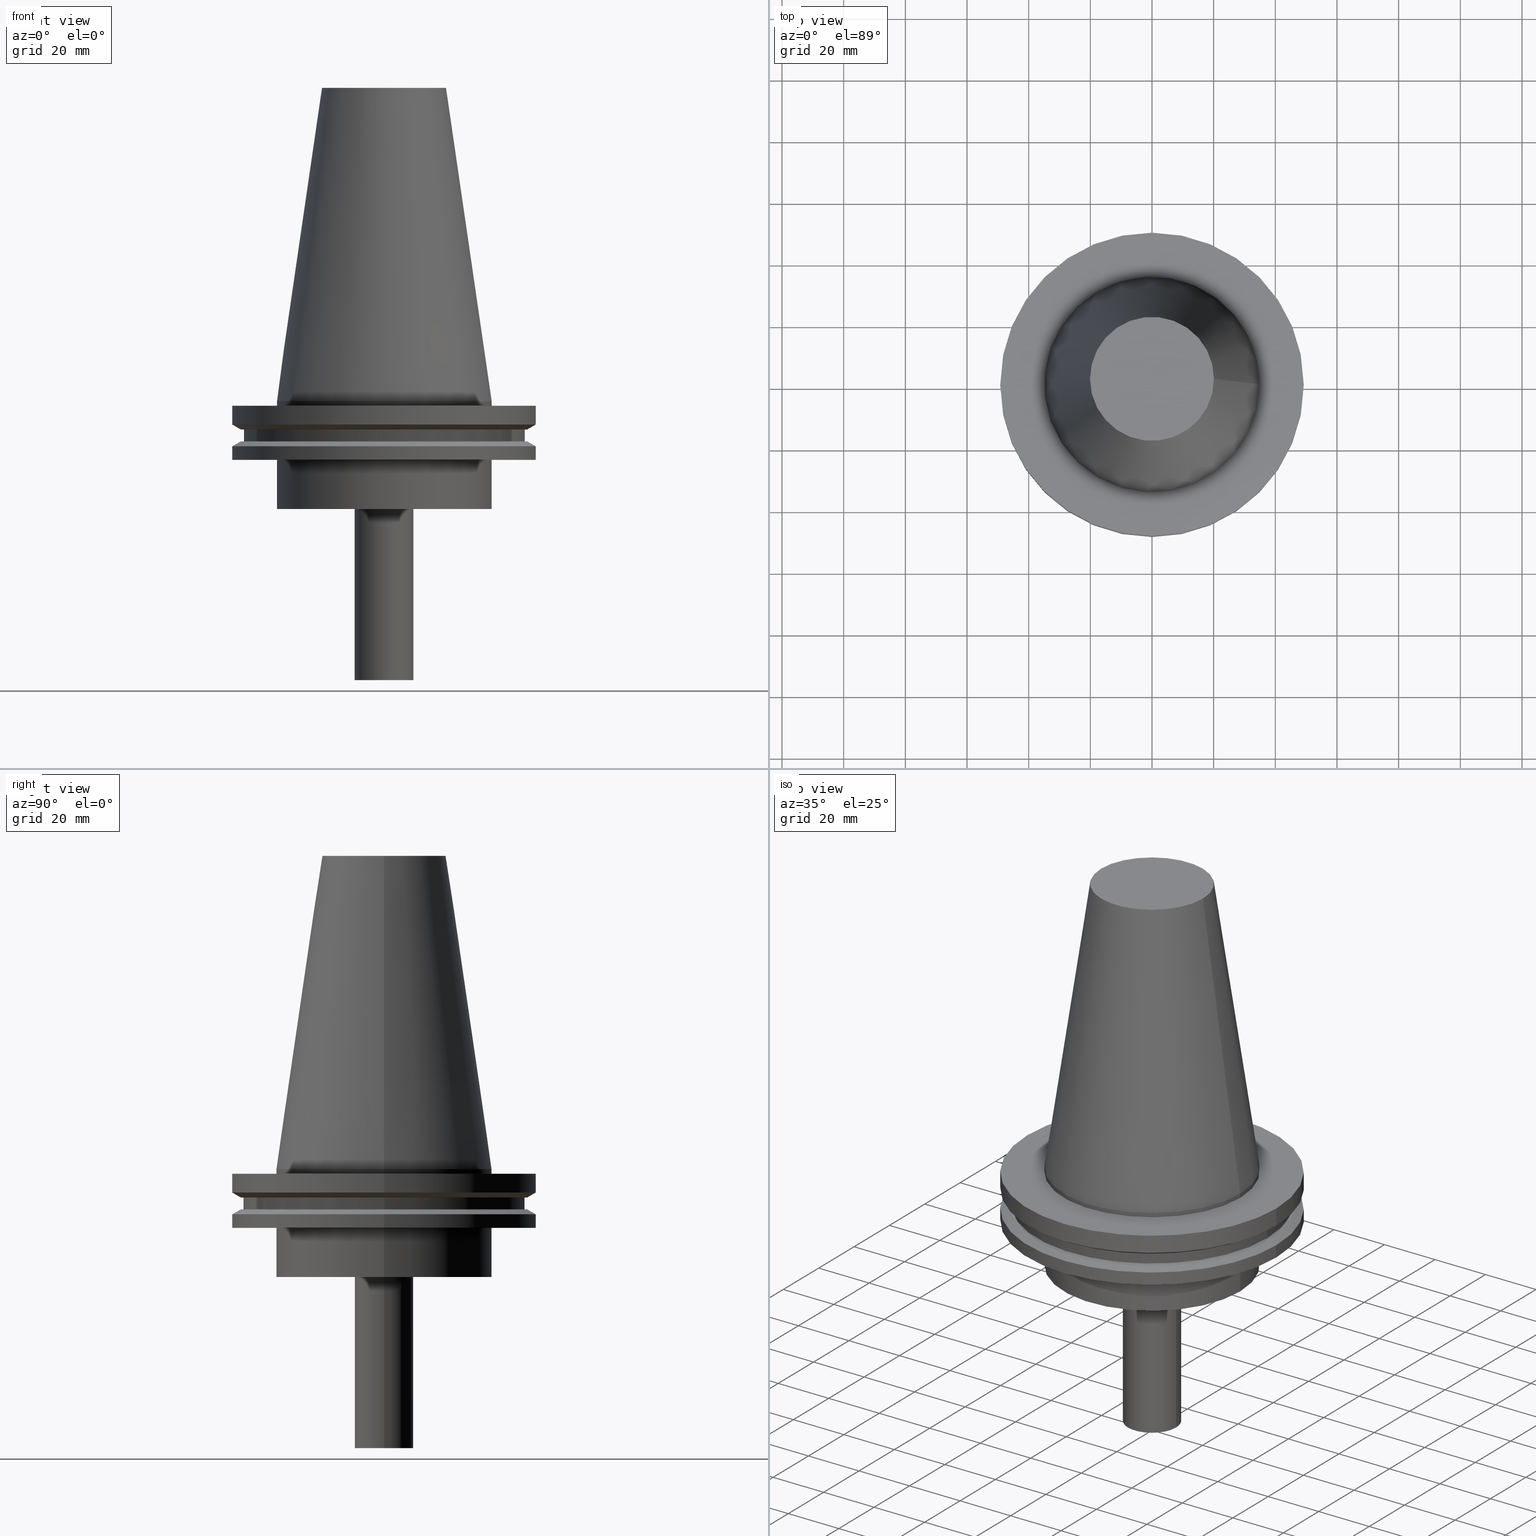
[diagram: canonical four-view strip — front | top / right | iso, engineering-drawing reading convention]
A machine part, canonical four-view strip (front | top / right | iso — engineering-drawing reading convention). The complete STEP part file that produces these views, byte-faithful:
ISO-10303-21;
HEADER;
FILE_DESCRIPTION (( 'STEP AP203' ),
    '1' );
FILE_NAME ('11.326.611.stp',
    '2022-03-09T14:49:17',
    ( '' ),
    ( '' ),
    'SwSTEP 2.0',
    'SolidWorks 2021',
    '' );
FILE_SCHEMA (( 'CONFIG_CONTROL_DESIGN' ));
ENDSEC;

DATA;
#1 = AXIS2_PLACEMENT_3D ( 'NONE', #110, #330, #234 ) ;
#2 = DATE_AND_TIME ( #279, #23 ) ;
#3 = EDGE_LOOP ( 'NONE', ( #117 ) ) ;
#4 = CARTESIAN_POINT ( 'NONE',  ( 49.21500000000000341, 0.000000000000000000, -7.602389855251287187 ) ) ;
#5 = EDGE_LOOP ( 'NONE', ( #115 ) ) ;
#6 = COORDINATED_UNIVERSAL_TIME_OFFSET ( 6, 0, .BEHIND. ) ;
#7 = CARTESIAN_POINT ( 'NONE',  ( 0.000000000000000000, 49.21499999999998920, -19.04999999999999716 ) ) ;
#8 = CIRCLE ( 'NONE', #37, 9.525000000000000355 ) ;
#9 = AXIS2_PLACEMENT_3D ( 'NONE', #236, #141, #204 ) ;
#10 = APPROVAL_ROLE ( '' ) ;
#11 = PLANE ( 'NONE',  #284 ) ;
#12 = PRODUCT_DEFINITION ( 'UNKNOWN', '', #154, #328 ) ;
#13 = DIRECTION ( 'NONE',  ( 1.000000000000000000, 0.000000000000000000, 0.000000000000000000 ) ) ;
#14 = CALENDAR_DATE ( 2022, 9, 3 ) ;
#15 = CARTESIAN_POINT ( 'NONE',  ( 0.000000000000000000, 0.000000000000000000, -35.00000000000000000 ) ) ;
#16 = COORDINATED_UNIVERSAL_TIME_OFFSET ( 6, 0, .BEHIND. ) ;
#17 = PLANE ( 'NONE',  #336 ) ;
#18 = CARTESIAN_POINT ( 'NONE',  ( 0.000000000000000000, 0.000000000000000000, 0.000000000000000000 ) ) ;
#19 = APPLICATION_CONTEXT ( 'configuration controlled 3d designs of mechanical parts and assemblies' ) ;
#20 = CYLINDRICAL_SURFACE ( 'NONE', #9, 49.21499999999998920 ) ;
#21 = EDGE_CURVE ( 'NONE', #136, #136, #39, .T. ) ;
#22 = DIRECTION ( 'NONE',  ( 1.000000000000000000, 0.000000000000000000, 0.000000000000000000 ) ) ;
#23 = LOCAL_TIME ( 8, 49, 17.00000000000000000, #156 ) ;
#24 = CARTESIAN_POINT ( 'NONE',  ( 0.000000000000000000, 0.000000000000000000, -13.05499999999999794 ) ) ;
#25 = EDGE_LOOP ( 'NONE', ( #126 ) ) ;
#26 = CARTESIAN_POINT ( 'NONE',  ( 0.000000000000000000, 49.21499999999999631, -1.499999999999992895 ) ) ;
#27 = EDGE_CURVE ( 'NONE', #109, #109, #356, .T. ) ;
#28 = PERSON_AND_ORGANIZATION_ROLE ( 'creator' ) ;
#29 = AXIS2_PLACEMENT_3D ( 'NONE', #24, #389, #361 ) ;
#30 = APPROVAL ( #225, 'UNSPECIFIED' ) ;
#31 = ORIENTED_EDGE ( 'NONE', *, *, #233, .T. ) ;
#32 = CARTESIAN_POINT ( 'NONE',  ( 9.525000000000000355, 0.000000000000000000, -90.50000000000001421 ) ) ;
#33 = ORIENTED_EDGE ( 'NONE', *, *, #309, .T. ) ;
#34 = PERSON_AND_ORGANIZATION ( #162, #375 ) ;
#35 = DIRECTION ( 'NONE',  ( -0.000000000000000000, -0.000000000000000000, 1.000000000000000000 ) ) ;
#36 = EDGE_LOOP ( 'NONE', ( #237 ) ) ;
#37 = AXIS2_PLACEMENT_3D ( 'NONE', #376, #354, #348 ) ;
#38 = DIRECTION ( 'NONE',  ( 1.000000000000000000, 0.000000000000000000, 0.000000000000000000 ) ) ;
#39 = CIRCLE ( 'NONE', #297, 34.92499999999999005 ) ;
#40 = CONICAL_SURFACE ( 'NONE', #194, 34.92499999999999005, 0.1448138465474119452 ) ;
#41 = PERSON_AND_ORGANIZATION ( #162, #375 ) ;
#42 = CYLINDRICAL_SURFACE ( 'NONE', #305, 34.92499999999999005 ) ;
#43 = CARTESIAN_POINT ( 'NONE',  ( 0.000000000000000000, 0.000000000000000000, -1.499999999999987566 ) ) ;
#44 = ADVANCED_FACE ( 'NONE', ( #365, #87 ), #118, .T. ) ;
#45 = FACE_OUTER_BOUND ( 'NONE', #246, .T. ) ;
#46 = CARTESIAN_POINT ( 'NONE',  ( 0.000000000000000000, 45.64500000000000313, -13.05499999999999794 ) ) ;
#47 = CARTESIAN_POINT ( 'NONE',  ( 0.000000000000000000, 0.000000000000000000, 0.000000000000000000 ) ) ;
#48 = EDGE_CURVE ( 'NONE', #125, #125, #8, .T. ) ;
#49 = PLANE ( 'NONE',  #139 ) ;
#50 = DIRECTION ( 'NONE',  ( 1.000000000000000000, 0.000000000000000000, 0.000000000000000000 ) ) ;
#51 =( GEOMETRIC_REPRESENTATION_CONTEXT ( 3 ) GLOBAL_UNCERTAINTY_ASSIGNED_CONTEXT ( ( #295 ) ) GLOBAL_UNIT_ASSIGNED_CONTEXT ( ( #240, #64, #116 ) ) REPRESENTATION_CONTEXT ( 'NONE', 'WORKASPACE' ) );
#52 = ORIENTED_EDGE ( 'NONE', *, *, #170, .T. ) ;
#53 = DIRECTION ( 'NONE',  ( -0.000000000000000000, -0.000000000000000000, 1.000000000000000000 ) ) ;
#54 = FACE_BOUND ( 'NONE', #157, .T. ) ;
#55 = APPROVAL ( #57, 'UNSPECIFIED' ) ;
#56 = AXIS2_PLACEMENT_3D ( 'NONE', #258, #380, #38 ) ;
#57 = APPROVAL_STATUS ( 'not_yet_approved' ) ;
#58 = ORIENTED_EDGE ( 'NONE', *, *, #48, .F. ) ;
#59 = AXIS2_PLACEMENT_3D ( 'NONE', #47, #81, #294 ) ;
#60 = VERTEX_POINT ( 'NONE', #4 ) ;
#61 = EDGE_LOOP ( 'NONE', ( #93 ) ) ;
#62 = DIRECTION ( 'NONE',  ( 0.000000000000000000, 0.000000000000000000, 1.000000000000000000 ) ) ;
#63 = ORIENTED_EDGE ( 'NONE', *, *, #48, .T. ) ;
#64 =( NAMED_UNIT ( * ) PLANE_ANGLE_UNIT ( ) SI_UNIT ( $, .RADIAN. ) );
#65 = EDGE_LOOP ( 'NONE', ( #244 ) ) ;
#66 = ORIENTED_EDGE ( 'NONE', *, *, #364, .T. ) ;
#67 = SECURITY_CLASSIFICATION_LEVEL ( 'unclassified' ) ;
#68 = FACE_OUTER_BOUND ( 'NONE', #84, .T. ) ;
#69 = CC_DESIGN_PERSON_AND_ORGANIZATION_ASSIGNMENT ( #127, #350, ( #154 ) ) ;
#70 = APPROVAL_ROLE ( '' ) ;
#71 = FACE_OUTER_BOUND ( 'NONE', #25, .T. ) ;
#72 = CIRCLE ( 'NONE', #79, 45.64500000000000313 ) ;
#73 = DIRECTION ( 'NONE',  ( 0.000000000000000000, -0.000000000000000000, 1.000000000000000000 ) ) ;
#74 = EDGE_CURVE ( 'NONE', #114, #114, #285, .T. ) ;
#75 = COORDINATED_UNIVERSAL_TIME_OFFSET ( 6, 0, .BEHIND. ) ;
#76 = DIRECTION ( 'NONE',  ( 0.000000000000000000, 0.000000000000000000, -1.000000000000000000 ) ) ;
#77 = FACE_OUTER_BOUND ( 'NONE', #36, .T. ) ;
#78 = AXIS2_PLACEMENT_3D ( 'NONE', #226, #257, #352 ) ;
#79 = AXIS2_PLACEMENT_3D ( 'NONE', #83, #53, #176 ) ;
#80 = CARTESIAN_POINT ( 'NONE',  ( 0.000000000000000000, 0.000000000000000000, -14.65761014474876944 ) ) ;
#81 = DIRECTION ( 'NONE',  ( -0.000000000000000000, -0.000000000000000000, 1.000000000000000000 ) ) ;
#82 = DIRECTION ( 'NONE',  ( -1.000000000000000000, 0.000000000000000000, -0.000000000000000000 ) ) ;
#83 = CARTESIAN_POINT ( 'NONE',  ( 0.000000000000000000, 0.000000000000000000, -13.05499999999999794 ) ) ;
#84 = EDGE_LOOP ( 'NONE', ( #52 ) ) ;
#85 = DIRECTION ( 'NONE',  ( -0.000000000000000000, -0.000000000000000000, 1.000000000000000000 ) ) ;
#86 = CARTESIAN_POINT ( 'NONE',  ( 20.10819343178871321, 0.000000000000000000, 101.5999999999999801 ) ) ;
#87 = FACE_BOUND ( 'NONE', #215, .T. ) ;
#88 = MECHANICAL_CONTEXT ( 'NONE', #19, 'mechanical' ) ;
#89 = ORIENTED_EDGE ( 'NONE', *, *, #271, .T. ) ;
#90 = ADVANCED_FACE ( 'NONE', ( #71, #219 ), #130, .F. ) ;
#91 = EDGE_LOOP ( 'NONE', ( #342 ) ) ;
#92 = CARTESIAN_POINT ( 'NONE',  ( 46.43919780457007818, 0.000000000000000000, -9.204999999999991189 ) ) ;
#93 = ORIENTED_EDGE ( 'NONE', *, *, #164, .F. ) ;
#94 = ADVANCED_FACE ( 'NONE', ( #133, #319 ), #168, .F. ) ;
#95 = DIRECTION ( 'NONE',  ( 1.000000000000000000, 0.000000000000000000, 0.000000000000000000 ) ) ;
#96 = CARTESIAN_POINT ( 'NONE',  ( 0.000000000000000000, 0.000000000000000000, 101.5999999999999943 ) ) ;
#97 = DATE_AND_TIME ( #377, #333 ) ;
#98 = DIRECTION ( 'NONE',  ( 1.000000000000000000, 0.000000000000000000, 0.000000000000000000 ) ) ;
#99 = CALENDAR_DATE ( 2022, 9, 3 ) ;
#100 = DIRECTION ( 'NONE',  ( -0.000000000000000000, -0.000000000000000000, 1.000000000000000000 ) ) ;
#101 = CARTESIAN_POINT ( 'NONE',  ( 0.000000000000000000, 20.10819343178871321, 101.5999999999999943 ) ) ;
#102 = FACE_OUTER_BOUND ( 'NONE', #189, .T. ) ;
#103 = ADVANCED_FACE ( 'NONE', ( #229 ), #259, .F. ) ;
#104 = CIRCLE ( 'NONE', #177, 34.92499999999999005 ) ;
#105 = DIRECTION ( 'NONE',  ( 0.000000000000000000, 0.000000000000000000, -1.000000000000000000 ) ) ;
#106 = AXIS2_PLACEMENT_3D ( 'NONE', #378, #73, #98 ) ;
#107 = CYLINDRICAL_SURFACE ( 'NONE', #253, 49.21499999999999631 ) ;
#108 = APPLICATION_CONTEXT ( 'configuration controlled 3d designs of mechanical parts and assemblies' ) ;
#109 = VERTEX_POINT ( 'NONE', #146 ) ;
#110 = CARTESIAN_POINT ( 'NONE',  ( 0.000000000000000000, 0.000000000000000000, 101.5999999999999943 ) ) ;
#111 = EDGE_CURVE ( 'NONE', #373, #373, #206, .T. ) ;
#112 = DIRECTION ( 'NONE',  ( -1.000000000000000000, 0.000000000000000000, 0.000000000000000000 ) ) ;
#113 = CC_DESIGN_APPROVAL ( #30, ( #300 ) ) ;
#114 = VERTEX_POINT ( 'NONE', #273 ) ;
#115 = ORIENTED_EDGE ( 'NONE', *, *, #74, .F. ) ;
#116 =( NAMED_UNIT ( * ) SI_UNIT ( $, .STERADIAN. ) SOLID_ANGLE_UNIT ( ) );
#117 = ORIENTED_EDGE ( 'NONE', *, *, #111, .F. ) ;
#118 = CONICAL_SURFACE ( 'NONE', #384, 46.43919780457007818, 1.047197551196575205 ) ;
#119 = DIRECTION ( 'NONE',  ( 1.000000000000000000, 0.000000000000000000, 0.000000000000000000 ) ) ;
#120 = PRODUCT ( '11.326.611', '11.326.611', '', ( #88 ) ) ;
#121 = EDGE_LOOP ( 'NONE', ( #33 ) ) ;
#122 = CIRCLE ( 'NONE', #29, 46.43919780457007818 ) ;
#123 = CARTESIAN_POINT ( 'NONE',  ( 49.21499999999998920, 0.000000000000000000, -14.65761014474876944 ) ) ;
#124 = ORIENTED_EDGE ( 'NONE', *, *, #364, .F. ) ;
#125 = VERTEX_POINT ( 'NONE', #32 ) ;
#126 = ORIENTED_EDGE ( 'NONE', *, *, #372, .F. ) ;
#127 = PERSON_AND_ORGANIZATION ( #162, #375 ) ;
#128 = DIRECTION ( 'NONE',  ( 0.000000000000000000, -0.000000000000000000, 1.000000000000000000 ) ) ;
#129 = APPROVAL_DATE_TIME ( #97, #30 ) ;
#130 = PLANE ( 'NONE',  #78 ) ;
#131 = DIRECTION ( 'NONE',  ( 1.000000000000000000, 0.000000000000000000, 0.000000000000000000 ) ) ;
#132 = DATE_AND_TIME ( #14, #198 ) ;
#133 = FACE_BOUND ( 'NONE', #213, .T. ) ;
#134 = DIRECTION ( 'NONE',  ( -1.000000000000000000, 0.000000000000000000, -0.000000000000000000 ) ) ;
#135 = ADVANCED_FACE ( 'NONE', ( #193, #323 ), #322, .T. ) ;
#136 = VERTEX_POINT ( 'NONE', #262 ) ;
#137 = CYLINDRICAL_SURFACE ( 'NONE', #1, 45.64500000000000313 ) ;
#138 = AXIS2_PLACEMENT_3D ( 'NONE', #101, #76, #196 ) ;
#139 = AXIS2_PLACEMENT_3D ( 'NONE', #26, #173, #82 ) ;
#140 = DIRECTION ( 'NONE',  ( 1.000000000000000000, 0.000000000000000000, 0.000000000000000000 ) ) ;
#141 = DIRECTION ( 'NONE',  ( -0.000000000000000000, -0.000000000000000000, 1.000000000000000000 ) ) ;
#142 = ADVANCED_FACE ( 'NONE', ( #102, #68 ), #42, .T. ) ;
#143 = FACE_BOUND ( 'NONE', #250, .T. ) ;
#144 = MANIFOLD_SOLID_BREP ( 'CKB', #243 ) ;
#145 = ORIENTED_EDGE ( 'NONE', *, *, #309, .F. ) ;
#146 = CARTESIAN_POINT ( 'NONE',  ( 49.21499999999999631, 0.000000000000000000, -1.499999999999987566 ) ) ;
#147 = AXIS2_PLACEMENT_3D ( 'NONE', #340, #62, #119 ) ;
#148 = EDGE_CURVE ( 'NONE', #242, #242, #299, .T. ) ;
#149 = PERSON_AND_ORGANIZATION ( #162, #375 ) ;
#150 = DIRECTION ( 'NONE',  ( -0.000000000000000000, -0.000000000000000000, 1.000000000000000000 ) ) ;
#151 = CC_DESIGN_PERSON_AND_ORGANIZATION_ASSIGNMENT ( #34, #394, ( #120 ) ) ;
#152 = VERTEX_POINT ( 'NONE', #281 ) ;
#153 = ORIENTED_EDGE ( 'NONE', *, *, #277, .F. ) ;
#154 = PRODUCT_DEFINITION_FORMATION_WITH_SPECIFIED_SOURCE ( 'ANY', '', #120, .NOT_KNOWN. ) ;
#155 = EDGE_LOOP ( 'NONE', ( #341 ) ) ;
#156 = COORDINATED_UNIVERSAL_TIME_OFFSET ( 6, 0, .BEHIND. ) ;
#157 = EDGE_LOOP ( 'NONE', ( #371 ) ) ;
#158 = ORIENTED_EDGE ( 'NONE', *, *, #21, .F. ) ;
#159 = AXIS2_PLACEMENT_3D ( 'NONE', #165, #381, #346 ) ;
#160 = CIRCLE ( 'NONE', #266, 49.21500000000000341 ) ;
#161 = CARTESIAN_POINT ( 'NONE',  ( 0.000000000000000000, 0.000000000000000000, -7.602389855251287187 ) ) ;
#162 = PERSON ( 'UNSPECIFIED', 'UNSPECIFIED', 'UNSPECIFIED', ('UNSPECIFIED'), ('UNSPECIFIED'), ('UNSPECIFIED') ) ;
#163 = AXIS2_PLACEMENT_3D ( 'NONE', #357, #298, #140 ) ;
#164 = EDGE_CURVE ( 'NONE', #60, #60, #160, .T. ) ;
#165 = CARTESIAN_POINT ( 'NONE',  ( 0.000000000000000000, 0.000000000000000000, -19.04999999999999716 ) ) ;
#166 = CC_DESIGN_DATE_AND_TIME_ASSIGNMENT ( #347, #292, ( #300 ) ) ;
#167 = DIRECTION ( 'NONE',  ( 1.000000000000000000, 0.000000000000000000, 0.000000000000000000 ) ) ;
#168 = PLANE ( 'NONE',  #106 ) ;
#169 = CC_DESIGN_SECURITY_CLASSIFICATION ( #300, ( #154 ) ) ;
#170 = EDGE_CURVE ( 'NONE', #314, #314, #104, .T. ) ;
#171 = FACE_BOUND ( 'NONE', #211, .T. ) ;
#172 = CARTESIAN_POINT ( 'NONE',  ( 0.000000000000000000, 0.000000000000000000, -9.204999999999991189 ) ) ;
#173 = DIRECTION ( 'NONE',  ( 0.000000000000000000, 0.000000000000000000, -1.000000000000000000 ) ) ;
#174 = AXIS2_PLACEMENT_3D ( 'NONE', #360, #230, #50 ) ;
#175 = CYLINDRICAL_SURFACE ( 'NONE', #59, 9.524999999999998579 ) ;
#176 = DIRECTION ( 'NONE',  ( 1.000000000000000000, 0.000000000000000000, 0.000000000000000000 ) ) ;
#177 = AXIS2_PLACEMENT_3D ( 'NONE', #43, #195, #288 ) ;
#178 = ADVANCED_FACE ( 'NONE', ( #324 ), #11, .F. ) ;
#179 = CARTESIAN_POINT ( 'NONE',  ( 45.64500000000000313, 0.000000000000000000, -9.204999999999991189 ) ) ;
#180 = CIRCLE ( 'NONE', #174, 49.21499999999998920 ) ;
#181 = ORIENTED_EDGE ( 'NONE', *, *, #74, .T. ) ;
#182 = CC_DESIGN_PERSON_AND_ORGANIZATION_ASSIGNMENT ( #304, #28, ( #12 ) ) ;
#183 = CARTESIAN_POINT ( 'NONE',  ( 45.64500000000000313, 0.000000000000000000, -13.05499999999999794 ) ) ;
#184 = ORIENTED_EDGE ( 'NONE', *, *, #111, .T. ) ;
#185 = EDGE_LOOP ( 'NONE', ( #188 ) ) ;
#186 = ADVANCED_FACE ( 'NONE', ( #291, #45 ), #17, .F. ) ;
#187 = APPROVAL_PERSON_ORGANIZATION ( #149, #55, #274 ) ;
#188 = ORIENTED_EDGE ( 'NONE', *, *, #148, .T. ) ;
#189 = EDGE_LOOP ( 'NONE', ( #158 ) ) ;
#190 = DIRECTION ( 'NONE',  ( -0.000000000000000000, -0.000000000000000000, 1.000000000000000000 ) ) ;
#191 = AXIS2_PLACEMENT_3D ( 'NONE', #96, #190, #382 ) ;
#192 = CALENDAR_DATE ( 2022, 9, 3 ) ;
#193 = FACE_OUTER_BOUND ( 'NONE', #3, .T. ) ;
#194 = AXIS2_PLACEMENT_3D ( 'NONE', #18, #105, #112 ) ;
#195 = DIRECTION ( 'NONE',  ( -0.000000000000000000, -0.000000000000000000, 1.000000000000000000 ) ) ;
#196 = DIRECTION ( 'NONE',  ( -1.000000000000000000, 0.000000000000000000, -0.000000000000000000 ) ) ;
#197 = PLANE ( 'NONE',  #387 ) ;
#198 = LOCAL_TIME ( 8, 49, 17.00000000000000000, #379 ) ;
#199 = FACE_OUTER_BOUND ( 'NONE', #369, .T. ) ;
#200 = FACE_OUTER_BOUND ( 'NONE', #241, .T. ) ;
#201 = ADVANCED_FACE ( 'NONE', ( #77, #171 ), #197, .F. ) ;
#202 = DIRECTION ( 'NONE',  ( -0.000000000000000000, -0.000000000000000000, 1.000000000000000000 ) ) ;
#203 = FACE_BOUND ( 'NONE', #91, .T. ) ;
#204 = DIRECTION ( 'NONE',  ( 1.000000000000000000, 0.000000000000000000, 0.000000000000000000 ) ) ;
#205 = VERTEX_POINT ( 'NONE', #179 ) ;
#206 = CIRCLE ( 'NONE', #159, 34.92499999999999716 ) ;
#207 = CC_DESIGN_DATE_AND_TIME_ASSIGNMENT ( #132, #228, ( #12 ) ) ;
#208 = CARTESIAN_POINT ( 'NONE',  ( 0.000000000000000000, 0.000000000000000000, -9.204999999999991189 ) ) ;
#209 = CC_DESIGN_APPROVAL ( #55, ( #12 ) ) ;
#210 = CIRCLE ( 'NONE', #268, 46.43919780457007818 ) ;
#211 = EDGE_LOOP ( 'NONE', ( #184 ) ) ;
#212 = VERTEX_POINT ( 'NONE', #183 ) ;
#213 = EDGE_LOOP ( 'NONE', ( #181 ) ) ;
#214 = ADVANCED_FACE ( 'NONE', ( #199, #200 ), #20, .T. ) ;
#215 = EDGE_LOOP ( 'NONE', ( #332 ) ) ;
#216 = APPLICATION_PROTOCOL_DEFINITION ( 'international standard', 'config_control_design', 1994, #19 ) ;
#217 = CARTESIAN_POINT ( 'NONE',  ( 0.000000000000000000, 0.000000000000000000, -1.499999999999987566 ) ) ;
#218 = APPROVAL_STATUS ( 'not_yet_approved' ) ;
#219 = FACE_BOUND ( 'NONE', #121, .T. ) ;
#220 = PERSON_AND_ORGANIZATION ( #162, #375 ) ;
#221 = DIRECTION ( 'NONE',  ( -0.000000000000000000, -0.000000000000000000, 1.000000000000000000 ) ) ;
#222 = DIRECTION ( 'NONE',  ( 1.000000000000000000, 0.000000000000000000, 0.000000000000000000 ) ) ;
#223 = APPROVAL_PERSON_ORGANIZATION ( #41, #30, #10 ) ;
#224 = CONICAL_SURFACE ( 'NONE', #368, 49.21499999999998920, 1.047197551196554333 ) ;
#225 = APPROVAL_STATUS ( 'not_yet_approved' ) ;
#226 = CARTESIAN_POINT ( 'NONE',  ( 0.000000000000000000, 46.43919780457007818, -9.204999999999998295 ) ) ;
#227 = CC_DESIGN_PERSON_AND_ORGANIZATION_ASSIGNMENT ( #220, #255, ( #154 ) ) ;
#228 = DATE_TIME_ROLE ( 'creation_date' ) ;
#229 = FACE_OUTER_BOUND ( 'NONE', #344, .T. ) ;
#230 = DIRECTION ( 'NONE',  ( -0.000000000000000000, -0.000000000000000000, 1.000000000000000000 ) ) ;
#231 = CIRCLE ( 'NONE', #321, 34.92499999999999716 ) ;
#232 = FACE_OUTER_BOUND ( 'NONE', #339, .T. ) ;
#233 = EDGE_CURVE ( 'NONE', #366, #366, #122, .T. ) ;
#234 = DIRECTION ( 'NONE',  ( 1.000000000000000000, 0.000000000000000000, 0.000000000000000000 ) ) ;
#235 = EDGE_LOOP ( 'NONE', ( #282 ) ) ;
#236 = CARTESIAN_POINT ( 'NONE',  ( 0.000000000000000000, 0.000000000000000000, 101.5999999999999943 ) ) ;
#237 = ORIENTED_EDGE ( 'NONE', *, *, #271, .F. ) ;
#238 = DIRECTION ( 'NONE',  ( -0.000000000000000000, -0.000000000000000000, 1.000000000000000000 ) ) ;
#239 = PRODUCT_RELATED_PRODUCT_CATEGORY ( 'detail', '', ( #120 ) ) ;
#240 =( LENGTH_UNIT ( ) NAMED_UNIT ( * ) SI_UNIT ( .MILLI., .METRE. ) );
#241 = EDGE_LOOP ( 'NONE', ( #89 ) ) ;
#242 = VERTEX_POINT ( 'NONE', #123 ) ;
#243 = CLOSED_SHELL ( 'NONE', ( #349, #103, #94, #135, #201, #214, #391, #186, #316, #90, #44, #247, #326, #142, #251, #178 ) ) ;
#244 = ORIENTED_EDGE ( 'NONE', *, *, #27, .T. ) ;
#245 = APPLICATION_PROTOCOL_DEFINITION ( 'international standard', 'config_control_design', 1994, #108 ) ;
#246 = EDGE_LOOP ( 'NONE', ( #31 ) ) ;
#247 = ADVANCED_FACE ( 'NONE', ( #265, #390 ), #107, .T. ) ;
#248 = VERTEX_POINT ( 'NONE', #363 ) ;
#249 = ORIENTED_EDGE ( 'NONE', *, *, #264, .F. ) ;
#250 = EDGE_LOOP ( 'NONE', ( #124 ) ) ;
#251 = ADVANCED_FACE ( 'NONE', ( #301, #232 ), #175, .T. ) ;
#252 = PERSON_AND_ORGANIZATION_ROLE ( 'classification_officer' ) ;
#253 = AXIS2_PLACEMENT_3D ( 'NONE', #386, #238, #327 ) ;
#254 = DIRECTION ( 'NONE',  ( 1.000000000000000000, 0.000000000000000000, 0.000000000000000000 ) ) ;
#255 = PERSON_AND_ORGANIZATION_ROLE ( 'creator' ) ;
#256 = APPROVAL ( #218, 'UNSPECIFIED' ) ;
#257 = DIRECTION ( 'NONE',  ( 0.000000000000000000, -0.000000000000000000, 1.000000000000000000 ) ) ;
#258 = CARTESIAN_POINT ( 'NONE',  ( 0.000000000000000000, 0.000000000000000000, -14.65761014474876944 ) ) ;
#259 = PLANE ( 'NONE',  #138 ) ;
#260 = APPROVAL_PERSON_ORGANIZATION ( #320, #256, #70 ) ;
#261 = DIRECTION ( 'NONE',  ( 0.000000000000000000, 0.000000000000000000, -1.000000000000000000 ) ) ;
#262 = CARTESIAN_POINT ( 'NONE',  ( 34.92499999999999005, 0.000000000000000000, 0.000000000000000000 ) ) ;
#263 = AXIS2_PLACEMENT_3D ( 'NONE', #15, #221, #131 ) ;
#264 = EDGE_CURVE ( 'NONE', #248, #248, #231, .T. ) ;
#265 = FACE_OUTER_BOUND ( 'NONE', #155, .T. ) ;
#266 = AXIS2_PLACEMENT_3D ( 'NONE', #161, #100, #222 ) ;
#267 = LOCAL_TIME ( 8, 49, 17.00000000000000000, #6 ) ;
#268 = AXIS2_PLACEMENT_3D ( 'NONE', #335, #85, #22 ) ;
#269 = FACE_OUTER_BOUND ( 'NONE', #185, .T. ) ;
#270 = CARTESIAN_POINT ( 'NONE',  ( 0.000000000000000000, 0.000000000000000000, -35.00000000000000000 ) ) ;
#271 = EDGE_CURVE ( 'NONE', #152, #152, #180, .T. ) ;
#272 = FACE_OUTER_BOUND ( 'NONE', #337, .T. ) ;
#273 = CARTESIAN_POINT ( 'NONE',  ( 9.524999999999998579, 0.000000000000000000, -35.00000000000000000 ) ) ;
#274 = APPROVAL_ROLE ( '' ) ;
#275 = DIRECTION ( 'NONE',  ( 1.000000000000000000, 0.000000000000000000, 0.000000000000000000 ) ) ;
#276 = VERTEX_POINT ( 'NONE', #86 ) ;
#277 = EDGE_CURVE ( 'NONE', #212, #212, #72, .T. ) ;
#278 = ORIENTED_EDGE ( 'NONE', *, *, #264, .T. ) ;
#279 = CALENDAR_DATE ( 2022, 9, 3 ) ;
#280 = ORIENTED_EDGE ( 'NONE', *, *, #148, .F. ) ;
#281 = CARTESIAN_POINT ( 'NONE',  ( 49.21499999999998920, 0.000000000000000000, -19.04999999999999716 ) ) ;
#282 = ORIENTED_EDGE ( 'NONE', *, *, #164, .T. ) ;
#283 = DIRECTION ( 'NONE',  ( 1.000000000000000000, 0.000000000000000000, 0.000000000000000000 ) ) ;
#284 = AXIS2_PLACEMENT_3D ( 'NONE', #325, #293, #167 ) ;
#285 = CIRCLE ( 'NONE', #263, 9.524999999999998579 ) ;
#286 = APPROVAL_DATE_TIME ( #289, #256 ) ;
#287 = CIRCLE ( 'NONE', #358, 45.64500000000000313 ) ;
#288 = DIRECTION ( 'NONE',  ( 1.000000000000000000, 0.000000000000000000, 0.000000000000000000 ) ) ;
#289 = DATE_AND_TIME ( #99, #267 ) ;
#290 = CARTESIAN_POINT ( 'NONE',  ( 0.000000000000000000, 0.000000000000000000, 101.5999999999999943 ) ) ;
#291 = FACE_BOUND ( 'NONE', #374, .T. ) ;
#292 = DATE_TIME_ROLE ( 'classification_date' ) ;
#293 = DIRECTION ( 'NONE',  ( 0.000000000000000000, -0.000000000000000000, 1.000000000000000000 ) ) ;
#294 = DIRECTION ( 'NONE',  ( 1.000000000000000000, 0.000000000000000000, 0.000000000000000000 ) ) ;
#295 = UNCERTAINTY_MEASURE_WITH_UNIT (LENGTH_MEASURE( 1.000000000000000082E-05 ), #240, 'distance_accuracy_value', 'NONE');
#296 = DIRECTION ( 'NONE',  ( 1.000000000000000000, 0.000000000000000000, 0.000000000000000000 ) ) ;
#297 = AXIS2_PLACEMENT_3D ( 'NONE', #317, #35, #95 ) ;
#298 = DIRECTION ( 'NONE',  ( -0.000000000000000000, -0.000000000000000000, 1.000000000000000000 ) ) ;
#299 = CIRCLE ( 'NONE', #56, 49.21499999999998920 ) ;
#300 = SECURITY_CLASSIFICATION ( '', '', #67 ) ;
#301 = FACE_OUTER_BOUND ( 'NONE', #5, .T. ) ;
#302 = EDGE_LOOP ( 'NONE', ( #249 ) ) ;
#303 = FACE_OUTER_BOUND ( 'NONE', #308, .T. ) ;
#304 = PERSON_AND_ORGANIZATION ( #162, #375 ) ;
#305 = AXIS2_PLACEMENT_3D ( 'NONE', #290, #355, #13 ) ;
#306 = CC_DESIGN_APPROVAL ( #256, ( #154 ) ) ;
#307 = CARTESIAN_POINT ( 'NONE',  ( 34.92499999999999716, 0.000000000000000000, -19.04999999999999716 ) ) ;
#308 = EDGE_LOOP ( 'NONE', ( #145 ) ) ;
#309 = EDGE_CURVE ( 'NONE', #205, #205, #287, .T. ) ;
#310 = CARTESIAN_POINT ( 'NONE',  ( 34.92499999999999005, 0.000000000000000000, -1.499999999999987566 ) ) ;
#311 = PRODUCT_DEFINITION_SHAPE ( 'NONE', 'NONE',  #12 ) ;
#312 = EDGE_LOOP ( 'NONE', ( #278 ) ) ;
#313 = CC_DESIGN_PERSON_AND_ORGANIZATION_ASSIGNMENT ( #353, #252, ( #300 ) ) ;
#314 = VERTEX_POINT ( 'NONE', #310 ) ;
#315 = ORIENTED_EDGE ( 'NONE', *, *, #21, .T. ) ;
#316 = ADVANCED_FACE ( 'NONE', ( #303, #359 ), #137, .T. ) ;
#317 = CARTESIAN_POINT ( 'NONE',  ( 0.000000000000000000, 0.000000000000000000, 0.000000000000000000 ) ) ;
#318 = DIRECTION ( 'NONE',  ( -0.000000000000000000, -0.000000000000000000, 1.000000000000000000 ) ) ;
#319 = FACE_OUTER_BOUND ( 'NONE', #302, .T. ) ;
#320 = PERSON_AND_ORGANIZATION ( #162, #375 ) ;
#321 = AXIS2_PLACEMENT_3D ( 'NONE', #270, #202, #331 ) ;
#322 = CYLINDRICAL_SURFACE ( 'NONE', #191, 34.92499999999999716 ) ;
#323 = FACE_OUTER_BOUND ( 'NONE', #312, .T. ) ;
#324 = FACE_OUTER_BOUND ( 'NONE', #395, .T. ) ;
#325 = CARTESIAN_POINT ( 'NONE',  ( 0.000000000000000000, 9.525000000000000355, -90.50000000000001421 ) ) ;
#326 = ADVANCED_FACE ( 'NONE', ( #203, #362 ), #49, .F. ) ;
#327 = DIRECTION ( 'NONE',  ( 1.000000000000000000, 0.000000000000000000, 0.000000000000000000 ) ) ;
#328 = DESIGN_CONTEXT ( 'detailed design', #108, 'design' ) ;
#329 = ADVANCED_BREP_SHAPE_REPRESENTATION ( '11.326.611', ( #144, #147 ), #51 ) ;
#330 = DIRECTION ( 'NONE',  ( -0.000000000000000000, -0.000000000000000000, 1.000000000000000000 ) ) ;
#331 = DIRECTION ( 'NONE',  ( 1.000000000000000000, 0.000000000000000000, 0.000000000000000000 ) ) ;
#332 = ORIENTED_EDGE ( 'NONE', *, *, #372, .T. ) ;
#333 = LOCAL_TIME ( 8, 49, 17.00000000000000000, #16 ) ;
#334 = DIRECTION ( 'NONE',  ( -0.000000000000000000, -0.000000000000000000, 1.000000000000000000 ) ) ;
#335 = CARTESIAN_POINT ( 'NONE',  ( 0.000000000000000000, 0.000000000000000000, -9.204999999999991189 ) ) ;
#336 = AXIS2_PLACEMENT_3D ( 'NONE', #46, #261, #134 ) ;
#337 = EDGE_LOOP ( 'NONE', ( #315 ) ) ;
#338 = CIRCLE ( 'NONE', #163, 20.10819343178871321 ) ;
#339 = EDGE_LOOP ( 'NONE', ( #63 ) ) ;
#340 = CARTESIAN_POINT ( 'NONE',  ( 0.000000000000000000, 0.000000000000000000, 0.000000000000000000 ) ) ;
#341 = ORIENTED_EDGE ( 'NONE', *, *, #27, .F. ) ;
#342 = ORIENTED_EDGE ( 'NONE', *, *, #170, .F. ) ;
#343 = APPROVAL_DATE_TIME ( #2, #55 ) ;
#344 = EDGE_LOOP ( 'NONE', ( #66 ) ) ;
#345 = SHAPE_DEFINITION_REPRESENTATION ( #311, #329 ) ;
#346 = DIRECTION ( 'NONE',  ( 1.000000000000000000, 0.000000000000000000, 0.000000000000000000 ) ) ;
#347 = DATE_AND_TIME ( #192, #351 ) ;
#348 = DIRECTION ( 'NONE',  ( 1.000000000000000000, 0.000000000000000000, 0.000000000000000000 ) ) ;
#349 = ADVANCED_FACE ( 'NONE', ( #143, #272 ), #40, .T. ) ;
#350 = PERSON_AND_ORGANIZATION_ROLE ( 'design_supplier' ) ;
#351 = LOCAL_TIME ( 8, 49, 17.00000000000000000, #75 ) ;
#352 = DIRECTION ( 'NONE',  ( 1.000000000000000000, 0.000000000000000000, 0.000000000000000000 ) ) ;
#353 = PERSON_AND_ORGANIZATION ( #162, #375 ) ;
#354 = DIRECTION ( 'NONE',  ( -0.000000000000000000, -0.000000000000000000, 1.000000000000000000 ) ) ;
#355 = DIRECTION ( 'NONE',  ( -0.000000000000000000, -0.000000000000000000, 1.000000000000000000 ) ) ;
#356 = CIRCLE ( 'NONE', #385, 49.21499999999999631 ) ;
#357 = CARTESIAN_POINT ( 'NONE',  ( 0.000000000000000000, 0.000000000000000000, 101.5999999999999801 ) ) ;
#358 = AXIS2_PLACEMENT_3D ( 'NONE', #172, #334, #296 ) ;
#359 = FACE_OUTER_BOUND ( 'NONE', #393, .T. ) ;
#360 = CARTESIAN_POINT ( 'NONE',  ( 0.000000000000000000, 0.000000000000000000, -19.04999999999999716 ) ) ;
#361 = DIRECTION ( 'NONE',  ( 1.000000000000000000, 0.000000000000000000, 0.000000000000000000 ) ) ;
#362 = FACE_OUTER_BOUND ( 'NONE', #65, .T. ) ;
#363 = CARTESIAN_POINT ( 'NONE',  ( 34.92499999999999716, 0.000000000000000000, -35.00000000000000000 ) ) ;
#364 = EDGE_CURVE ( 'NONE', #276, #276, #338, .T. ) ;
#365 = FACE_OUTER_BOUND ( 'NONE', #61, .T. ) ;
#366 = VERTEX_POINT ( 'NONE', #392 ) ;
#367 = ORIENTED_EDGE ( 'NONE', *, *, #277, .T. ) ;
#368 = AXIS2_PLACEMENT_3D ( 'NONE', #80, #388, #383 ) ;
#369 = EDGE_LOOP ( 'NONE', ( #280 ) ) ;
#370 = VERTEX_POINT ( 'NONE', #92 ) ;
#371 = ORIENTED_EDGE ( 'NONE', *, *, #233, .F. ) ;
#372 = EDGE_CURVE ( 'NONE', #370, #370, #210, .T. ) ;
#373 = VERTEX_POINT ( 'NONE', #307 ) ;
#374 = EDGE_LOOP ( 'NONE', ( #153 ) ) ;
#375 = ORGANIZATION ( 'UNSPECIFIED', 'UNSPECIFIED', '' ) ;
#376 = CARTESIAN_POINT ( 'NONE',  ( 0.000000000000000000, 0.000000000000000000, -90.50000000000001421 ) ) ;
#377 = CALENDAR_DATE ( 2022, 9, 3 ) ;
#378 = CARTESIAN_POINT ( 'NONE',  ( 0.000000000000000000, 34.92499999999999716, -35.00000000000000000 ) ) ;
#379 = COORDINATED_UNIVERSAL_TIME_OFFSET ( 6, 0, .BEHIND. ) ;
#380 = DIRECTION ( 'NONE',  ( -0.000000000000000000, -0.000000000000000000, 1.000000000000000000 ) ) ;
#381 = DIRECTION ( 'NONE',  ( -0.000000000000000000, -0.000000000000000000, 1.000000000000000000 ) ) ;
#382 = DIRECTION ( 'NONE',  ( 1.000000000000000000, 0.000000000000000000, 0.000000000000000000 ) ) ;
#383 = DIRECTION ( 'NONE',  ( -1.000000000000000000, 0.000000000000000000, 0.000000000000000000 ) ) ;
#384 = AXIS2_PLACEMENT_3D ( 'NONE', #208, #150, #275 ) ;
#385 = AXIS2_PLACEMENT_3D ( 'NONE', #217, #318, #283 ) ;
#386 = CARTESIAN_POINT ( 'NONE',  ( 0.000000000000000000, 0.000000000000000000, 101.5999999999999943 ) ) ;
#387 = AXIS2_PLACEMENT_3D ( 'NONE', #7, #128, #254 ) ;
#388 = DIRECTION ( 'NONE',  ( 0.000000000000000000, 0.000000000000000000, -1.000000000000000000 ) ) ;
#389 = DIRECTION ( 'NONE',  ( -0.000000000000000000, -0.000000000000000000, 1.000000000000000000 ) ) ;
#390 = FACE_OUTER_BOUND ( 'NONE', #235, .T. ) ;
#391 = ADVANCED_FACE ( 'NONE', ( #54, #269 ), #224, .T. ) ;
#392 = CARTESIAN_POINT ( 'NONE',  ( 46.43919780457007818, 0.000000000000000000, -13.05499999999999794 ) ) ;
#393 = EDGE_LOOP ( 'NONE', ( #367 ) ) ;
#394 = PERSON_AND_ORGANIZATION_ROLE ( 'design_owner' ) ;
#395 = EDGE_LOOP ( 'NONE', ( #58 ) ) ;
ENDSEC;
END-ISO-10303-21;
